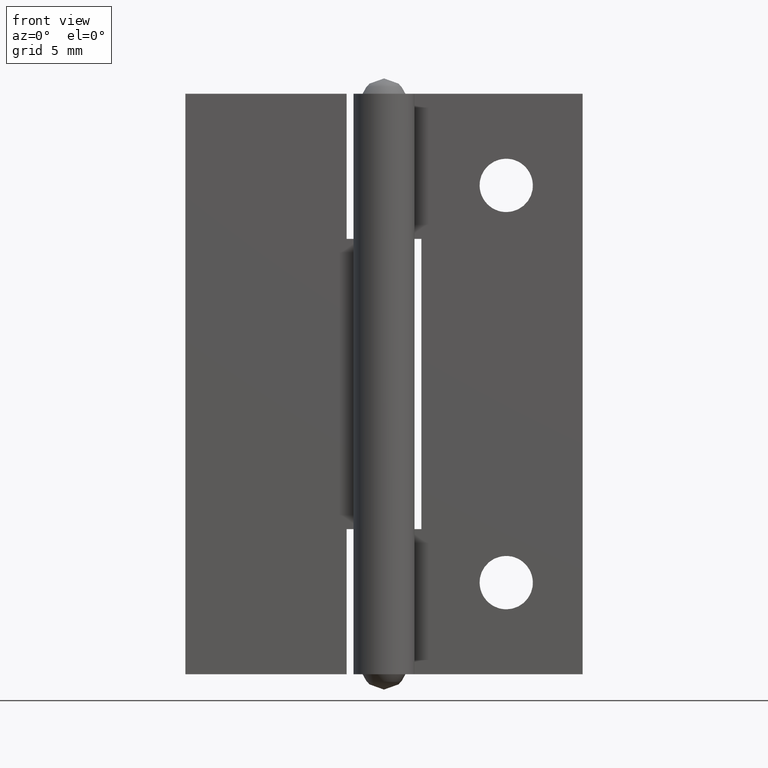
[diagram: clean part render]
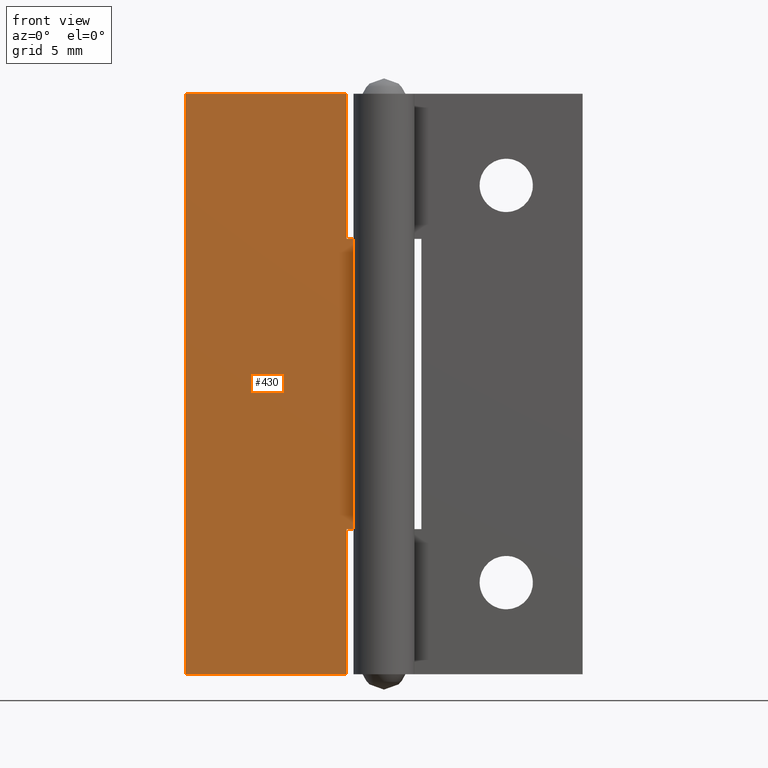
[diagram: same view with one face highlighted and labeled with its STEP entity id]
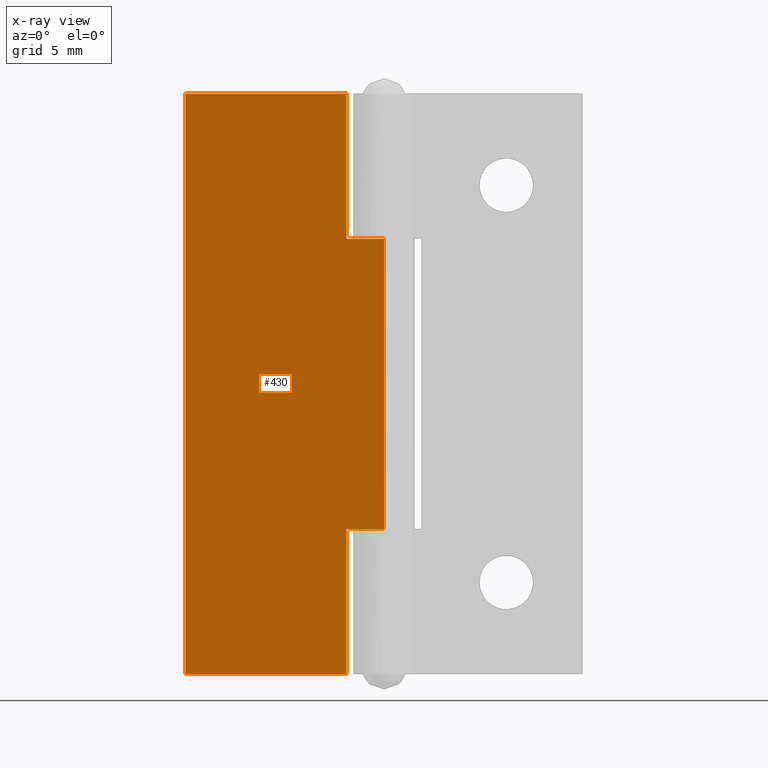
[diagram: x-ray of the same camera — body ghosted, the highlighted face saturated]
A machine part, front view. The second image highlights one B-rep face of the part: STEP entity #430.
The next image is the same camera in x-ray: the body ghosted, the highlighted face saturated — about 0% of this face is hidden behind the body in this view.
In plain terms, the highlighted face is a freeform B-spline surface patch.
Its self-contained STEP definition (entity closure, byte-faithful):
#10=CARTESIAN_POINT('',(-2.450000000000000,1.200000000000000,0.0));
#11=VERTEX_POINT('',#10);
#26=CARTESIAN_POINT('',(-2.450000000000000,1.199999999999980,9.500000000000000));
#27=VERTEX_POINT('',#26);
#33=CARTESIAN_POINT('',(-2.450000000000000,1.200000000000000,0.0));
#34=CARTESIAN_POINT('',(-2.450000000000000,1.199999999999980,9.500000000000000));
#35=QUASI_UNIFORM_CURVE('',1,(#33,#34),.UNSPECIFIED.,.F.,.U.);
#36=EDGE_CURVE('',#11,#27,#35,.T.);
#96=CARTESIAN_POINT('',(-0.000000034906577,1.200000000000000,9.500000000000000));
#97=VERTEX_POINT('',#96);
#129=CARTESIAN_POINT('',(-2.450000000000000,1.199999999999980,9.500000000000000));
#130=CARTESIAN_POINT('',(-0.000000034906577,1.200000000000000,9.500000000000000));
#131=QUASI_UNIFORM_CURVE('',1,(#129,#130),.UNSPECIFIED.,.F.,.U.);
#132=EDGE_CURVE('',#27,#97,#131,.T.);
#142=CARTESIAN_POINT('',(-2.450000000000000,1.199999999999980,28.500000000000000));
#143=VERTEX_POINT('',#142);
#158=CARTESIAN_POINT('',(-2.450000000000000,1.200000500000020,38.0));
#159=VERTEX_POINT('',#158);
#165=CARTESIAN_POINT('',(-2.450000000000000,1.199999999999980,28.500000000000000));
#166=CARTESIAN_POINT('',(-2.450000000000000,1.200000500000020,38.0));
#167=QUASI_UNIFORM_CURVE('',1,(#165,#166),.UNSPECIFIED.,.F.,.U.);
#168=EDGE_CURVE('',#143,#159,#167,.T.);
#180=CARTESIAN_POINT('',(-0.000000034906577,1.200000000000000,28.500000000000000));
#181=VERTEX_POINT('',#180);
#261=CARTESIAN_POINT('',(-0.000000034906577,1.200000000000000,28.500000000000000));
#262=CARTESIAN_POINT('',(-2.450000000000000,1.199999999999980,28.500000000000000));
#263=QUASI_UNIFORM_CURVE('',1,(#261,#262),.UNSPECIFIED.,.F.,.U.);
#264=EDGE_CURVE('',#181,#143,#263,.T.);
#275=CARTESIAN_POINT('',(-13.0,1.200001000000000,0.0));
#276=VERTEX_POINT('',#275);
#277=CARTESIAN_POINT('',(-13.0,1.200001000000000,0.0));
#278=CARTESIAN_POINT('',(-2.450000000000000,1.200000000000000,0.0));
#279=QUASI_UNIFORM_CURVE('',1,(#277,#278),.UNSPECIFIED.,.F.,.U.);
#280=EDGE_CURVE('',#276,#11,#279,.T.);
#302=CARTESIAN_POINT('',(-13.0,1.200001000000000,38.0));
#303=VERTEX_POINT('',#302);
#304=CARTESIAN_POINT('',(-13.0,1.200001000000000,38.0));
#305=CARTESIAN_POINT('',(-2.450000000000000,1.200000500000020,38.0));
#306=QUASI_UNIFORM_CURVE('',1,(#304,#305),.UNSPECIFIED.,.F.,.U.);
#307=EDGE_CURVE('',#303,#159,#306,.T.);
#400=CARTESIAN_POINT('',(-0.000000034906577,1.200000000000000,28.500000000000000));
#401=CARTESIAN_POINT('',(-0.000000034906577,1.200000000000000,9.500000000000000));
#402=QUASI_UNIFORM_CURVE('',1,(#400,#401),.UNSPECIFIED.,.F.,.U.);
#403=EDGE_CURVE('',#181,#97,#402,.T.);
#411=CARTESIAN_POINT('',(-13.649349973059900,1.200000000000000,-1.898099926348628));
#412=CARTESIAN_POINT('',(-13.649349973059900,1.200000000000000,39.898100945588048));
#413=CARTESIAN_POINT('',(0.649350286840488,1.200000000000000,-1.898099926348628));
#414=CARTESIAN_POINT('',(0.649350286840488,1.200000000000000,39.898100945588048));
#415=B_SPLINE_SURFACE_WITH_KNOTS('',1,1,((#411,#413),(#412,#414)),.UNSPECIFIED.,.F.,.F.,.U.,(2,2),(2,2),(0.0,41.796200871936684),(0.0,14.298700259900381),.UNSPECIFIED.);
#416=ORIENTED_EDGE('',*,*,#280,.T.);
#417=ORIENTED_EDGE('',*,*,#36,.T.);
#418=ORIENTED_EDGE('',*,*,#132,.T.);
#419=ORIENTED_EDGE('',*,*,#403,.F.);
#420=ORIENTED_EDGE('',*,*,#264,.T.);
#421=ORIENTED_EDGE('',*,*,#168,.T.);
#422=ORIENTED_EDGE('',*,*,#307,.F.);
#423=CARTESIAN_POINT('',(-13.0,1.200001000000000,38.0));
#424=CARTESIAN_POINT('',(-13.0,1.200001000000000,0.0));
#425=QUASI_UNIFORM_CURVE('',1,(#423,#424),.UNSPECIFIED.,.F.,.U.);
#426=EDGE_CURVE('',#303,#276,#425,.T.);
#427=ORIENTED_EDGE('',*,*,#426,.T.);
#428=EDGE_LOOP('',(#416,#417,#418,#419,#420,#421,#422,#427));
#429=FACE_OUTER_BOUND('',#428,.T.);
#430=ADVANCED_FACE('',(#429),#415,.F.);